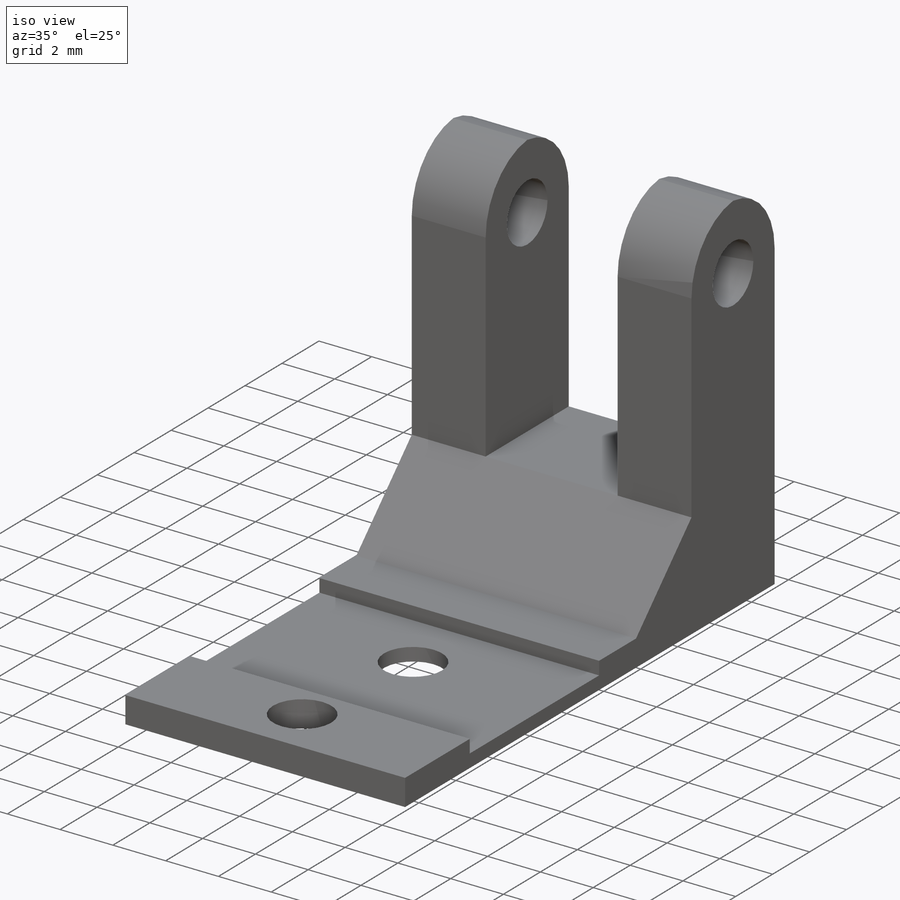
[diagram: iso view]
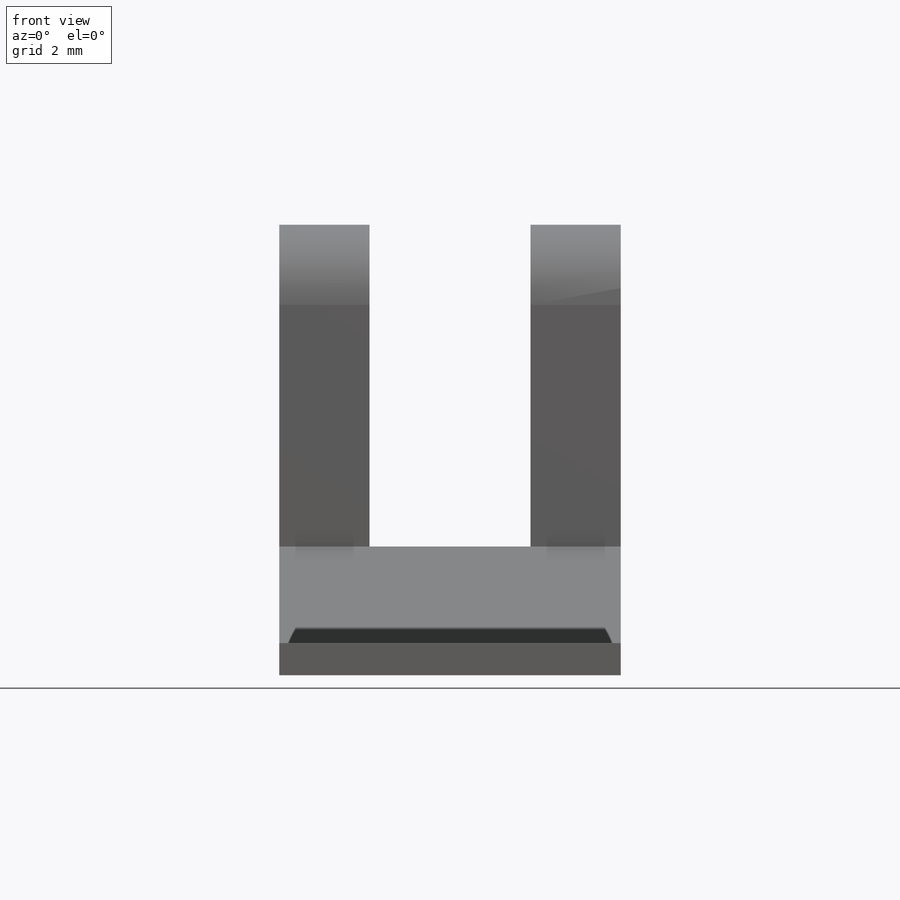
[diagram: front view]
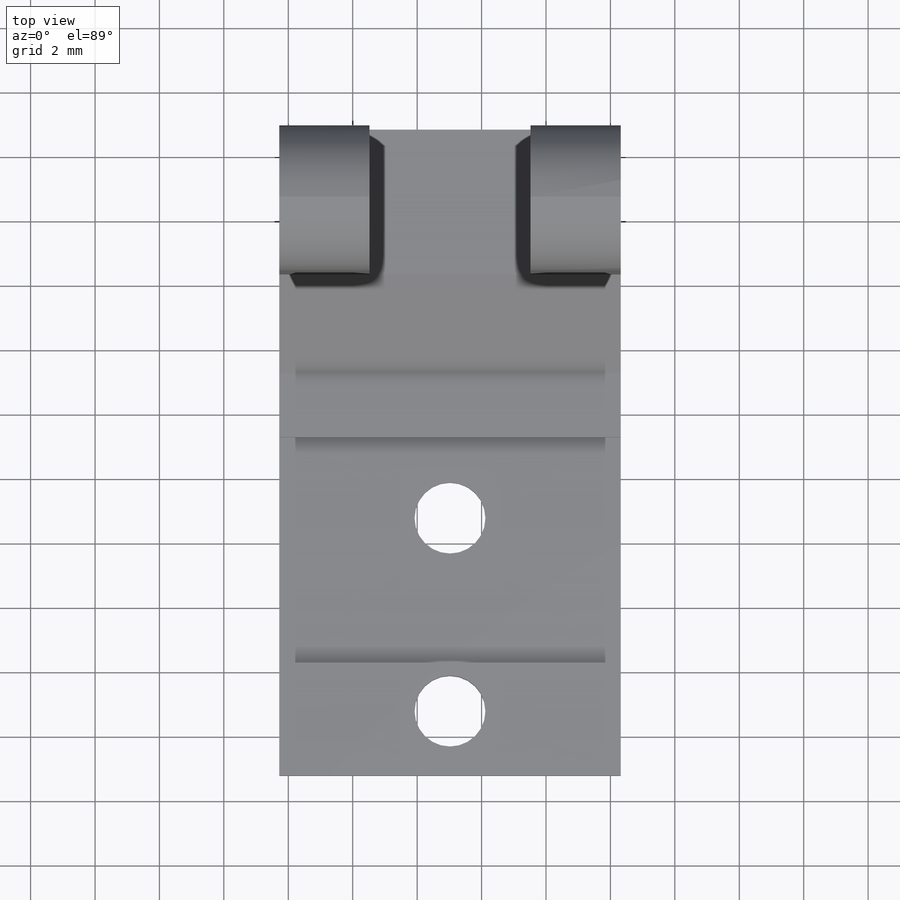
[diagram: top view]
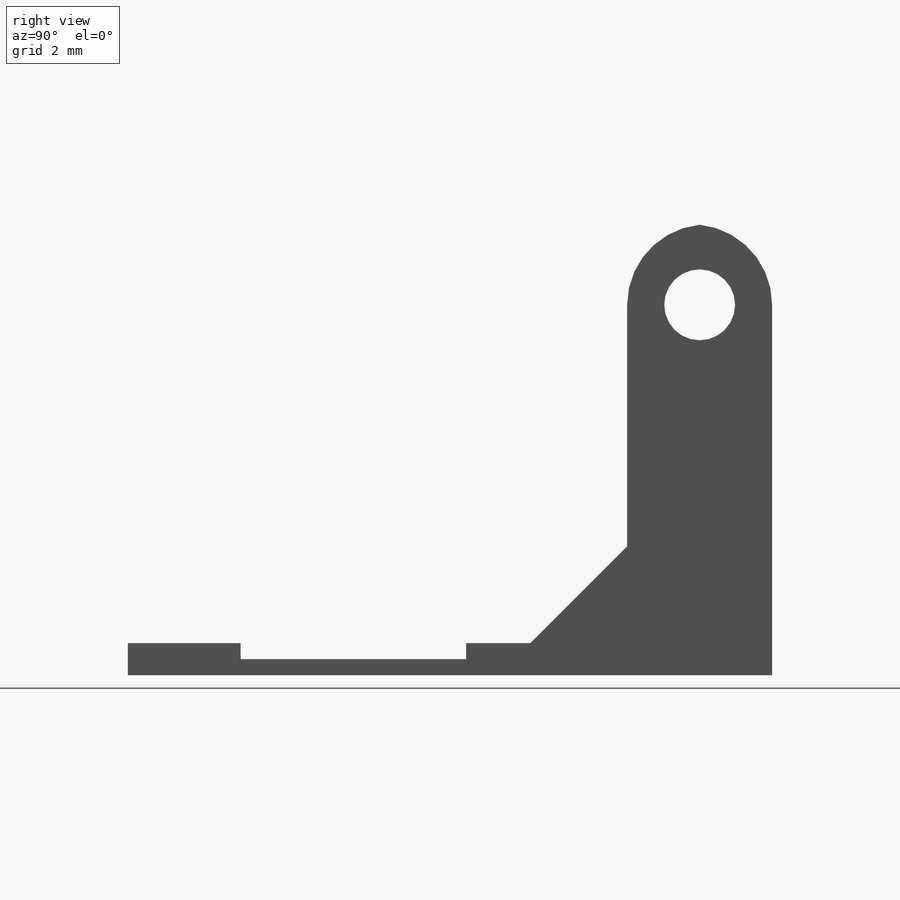
[diagram: right view]
SOLIDWORKS PART (.sldprt)
format: sldprt  version: not decoded by parser v0  size: 355,328 bytes
history: native  units: mm
features: sketch x13, extrude x7, cut_extrude x6, plane x3, material x1, chamfer x1, fillet x1 (+10 scaffold rows collapsed)
feature tree (42):
  scaffold x10  (default folders/planes/origin — collapsed)
  material  "Material <not specified>"
  plane  "Ön Düzlem"
  plane  "Üst Düzlem"
  plane  "Sağ Düzlem"
  sketch  "Sketch1"  dims[D7=2.2mm D12=2.2mm D1=2.8mm D2=2.8mm D3=20.0mm D4=20.0mm D5=5.0mm D6=5.0mm D8=5.3mm D9=5.3mm D10=9.0mm D11=6.0mm]
  extrude  "Boss-Extrude1"  Depth=1mm
  sketch  "Sketch2"
  extrude  "Boss-Extrude2"  Depth=8mm
  sketch  "Sketch4"
  extrude  "Boss-Extrude3"  Depth=3mm
  sketch  "Sketch5"  dims[D1=2.5mm D2=1.5mm]
  cut_extrude  "Cut-Extrude2"  Depth=100mm
  sketch  "Sketch6"
  extrude  "Boss-Extrude4"  Depth=1mm
  sketch  "Sketch7"  dims[D1=3.5mm]
  cut_extrude  "Cut-Extrude3"  Depth=100mm
  chamfer  "Chamfer2"  Distance=3mm Angle=45deg
  sketch  "Sketch8"  dims[D1=3.0mm]
  cut_extrude  "Cut-Extrude4"  Depth=10mm
  sketch  "Sketch9"
  extrude  "Boss-Extrude5"  [1 undecoded]
  sketch  "Sketch10"  dims[D1=2.0mm D2=3.5mm]
  cut_extrude  "Cut-Extrude5"  Depth=0.5mm
  sketch  "Sketch11"
  extrude  "Boss-Extrude6"  Depth=4mm
  sketch  "Sketch12"
  extrude  "Boss-Extrude7"  [1 undecoded]
  sketch  "Sketch13"
  cut_extrude  "Cut-Extrude6"  [1 undecoded]
  sketch  "Sketch14"  dims[c1.D1=2.25mm c1.D2=~2.633888mm c2.D2=90.0deg c3.D2=2.5mm]
  cut_extrude  "Cut-Extrude7"  Depth=20mm
  fillet  "Fillet1"  Radius=2.5mm
decode coverage: 18 of 28 modeling features carry decoded parameters
note: ~ marks probable driven/reference dimensions
note: 3 parameter values undecoded
summary: no parameter record found for 3 features
note: suppression state not decoded; provenance and decode notes live in map.json
